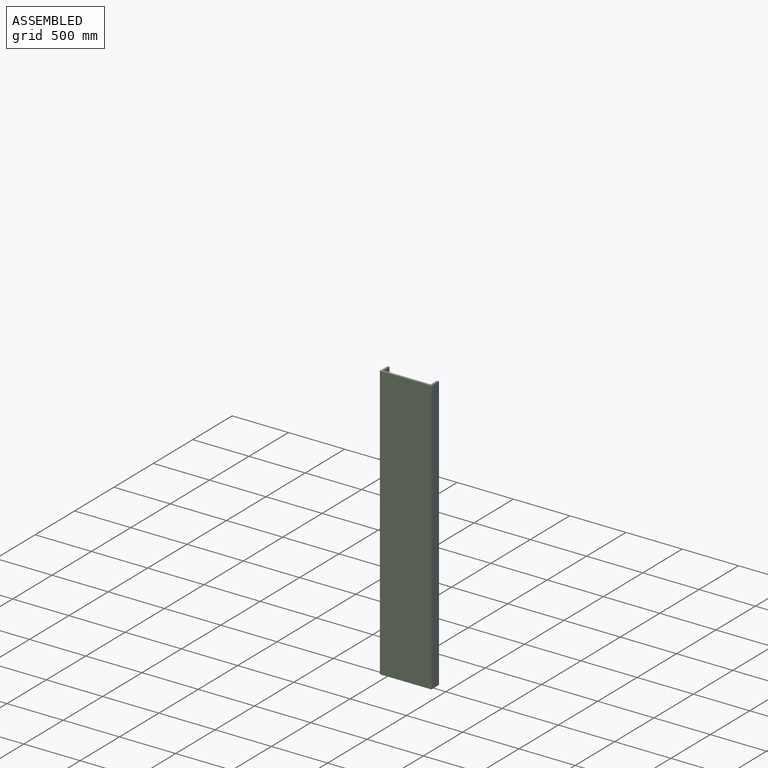
[diagram: assembled view]
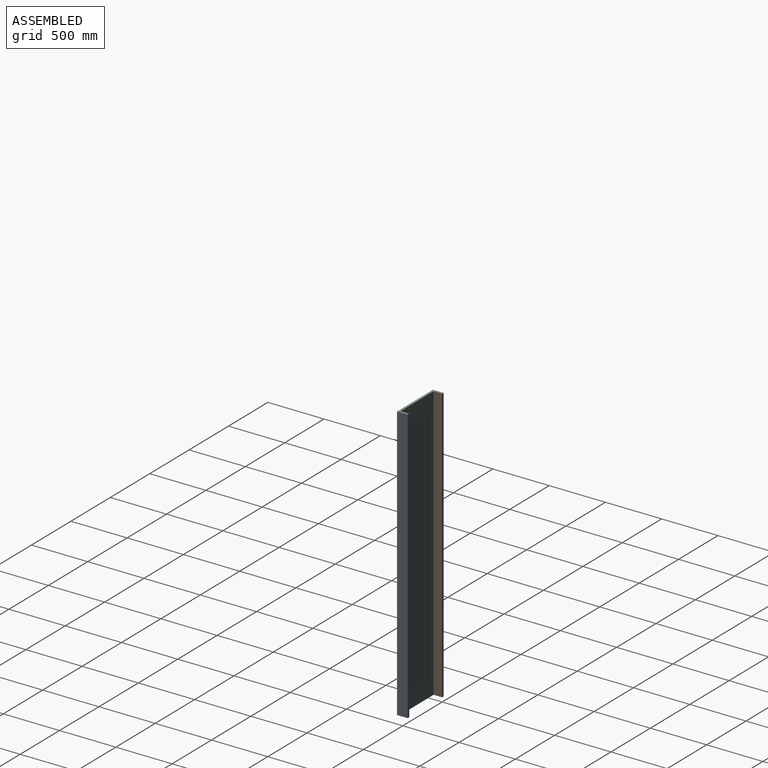
[diagram: assembled view, second angle]
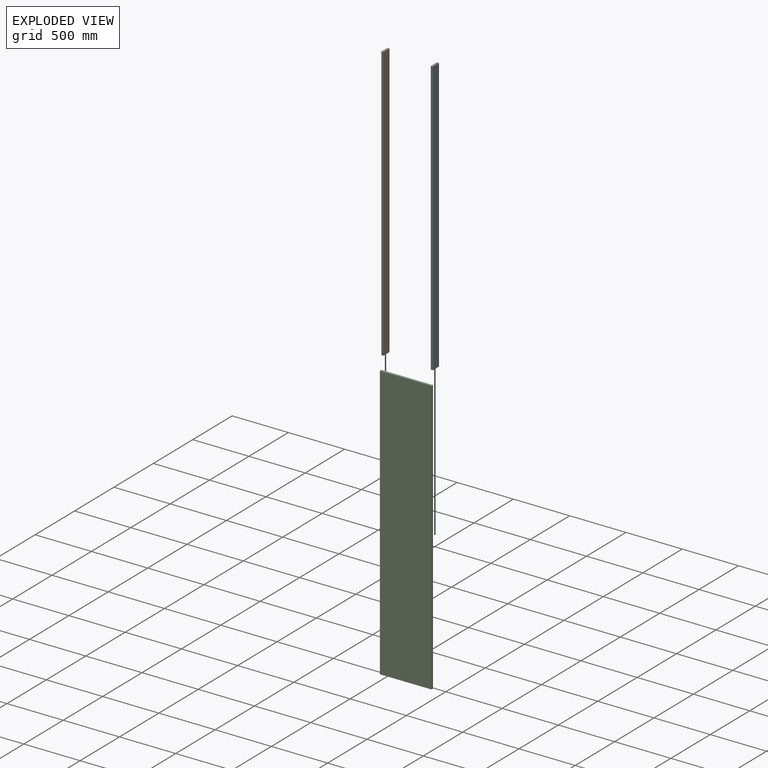
[diagram: exploded view]
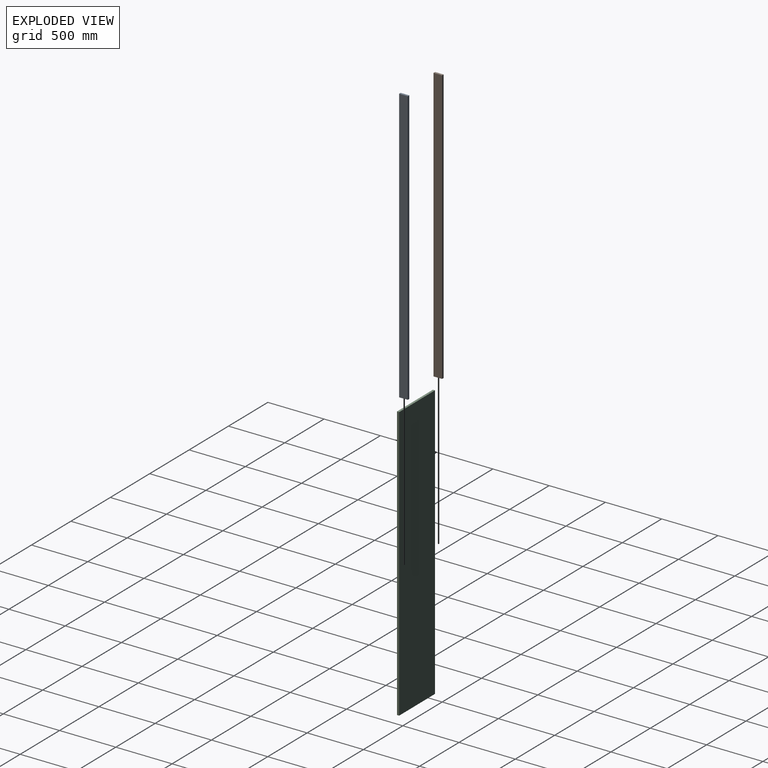
[diagram: exploded view, second angle]
ASSEMBLY  parts=3 mates=4
PART A: 6 faces, bbox 76.2x19.1x2438.4 mm
  f0: plane 2438.4x76.2mm, normal (0,1,0), area 185806.1mm2, adj f1,f3,f4,f5
  f1: plane 2438.4x19.05mm, normal (-1,0,0), area 46451.5mm2, adj f0,f2,f4,f5
  f2: plane 2438.4x76.2mm, normal (0,-1,0), area 185806.1mm2, adj f1,f3,f4,f5
  f3: plane 2438.4x19.05mm, normal (1,0,0), area 46451.5mm2, adj f0,f2,f4,f5
  f4: plane 76.2x19.05mm, normal (0,0,1), area 1451.6mm2, adj f0,f1,f2,f3
  f5: plane 76.2x19.05mm, normal (0,0,-1), area 1451.6mm2, adj f0,f1,f2,f3
PART B: same geometry as A
PART C: 6 faces, bbox 457.2x19.1x2438.4 mm
  f0: plane 2438.4x457.2mm, normal (0,1,0), area 1114836.5mm2, adj f1,f3,f4,f5
  f1: plane 2438.4x19.05mm, normal (-1,0,0), area 46451.5mm2, adj f0,f2,f4,f5
  f2: plane 2438.4x457.2mm, normal (0,-1,0), area 1114836.5mm2, adj f1,f3,f4,f5
  f3: plane 2438.4x19.05mm, normal (1,0,0), area 46451.5mm2, adj f0,f2,f4,f5
  f4: plane 457.2x19.05mm, normal (0,0,1), area 8709.7mm2, adj f0,f1,f2,f3
  f5: plane 457.2x19.05mm, normal (0,0,-1), area 8709.7mm2, adj f0,f1,f2,f3
PLACE A rot(axis=(0,0,-1),89.8deg) t=(438.15,1.22,0)mm
PLACE B rot(axis=(0,0,-1),89.8deg) t=(0,0,0)mm fixed
PLACE C rot(axis=(0,0,1),0.2deg) t=(-18.84,-76.25,0)mm
MATE fastened B.f4 <-> C.f4  axis (0,0,1) through (-18.84,-76.25,2438.4)mm
MATE planar B.f4 <-> C.f4  axis (0,0,1) through (-18.84,-76.25,2438.4)mm
MATE planar C.f4 <-> A.f4  axis (0,0,1) through (438.36,-74.98,2438.4)mm
MATE fastened C.f4 <-> A.f4  axis (0,0,1) through (438.36,-74.98,2438.4)mm
